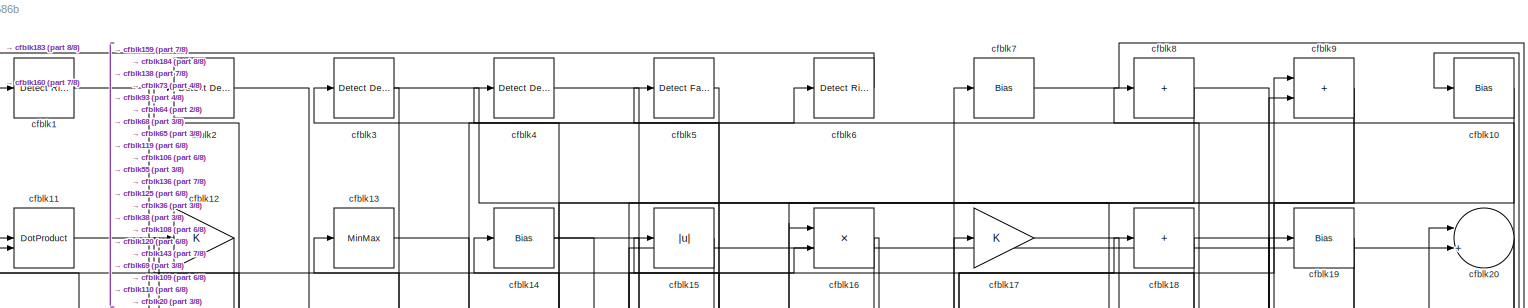
[diagram: root canvas - part 1/8, full width, top band]
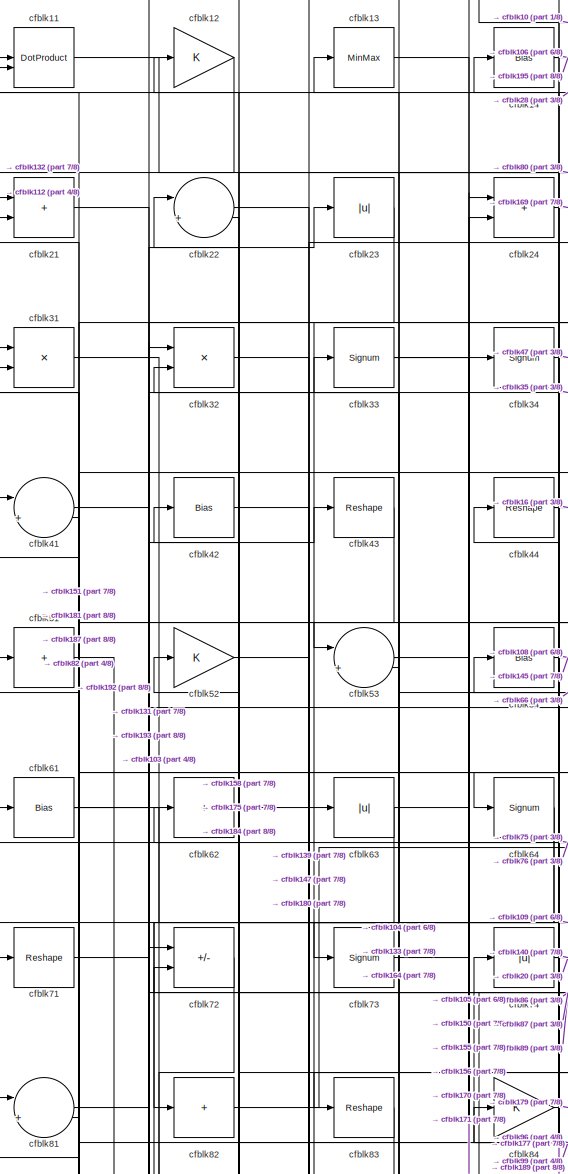
[diagram: root canvas - part 2/8, top left region]
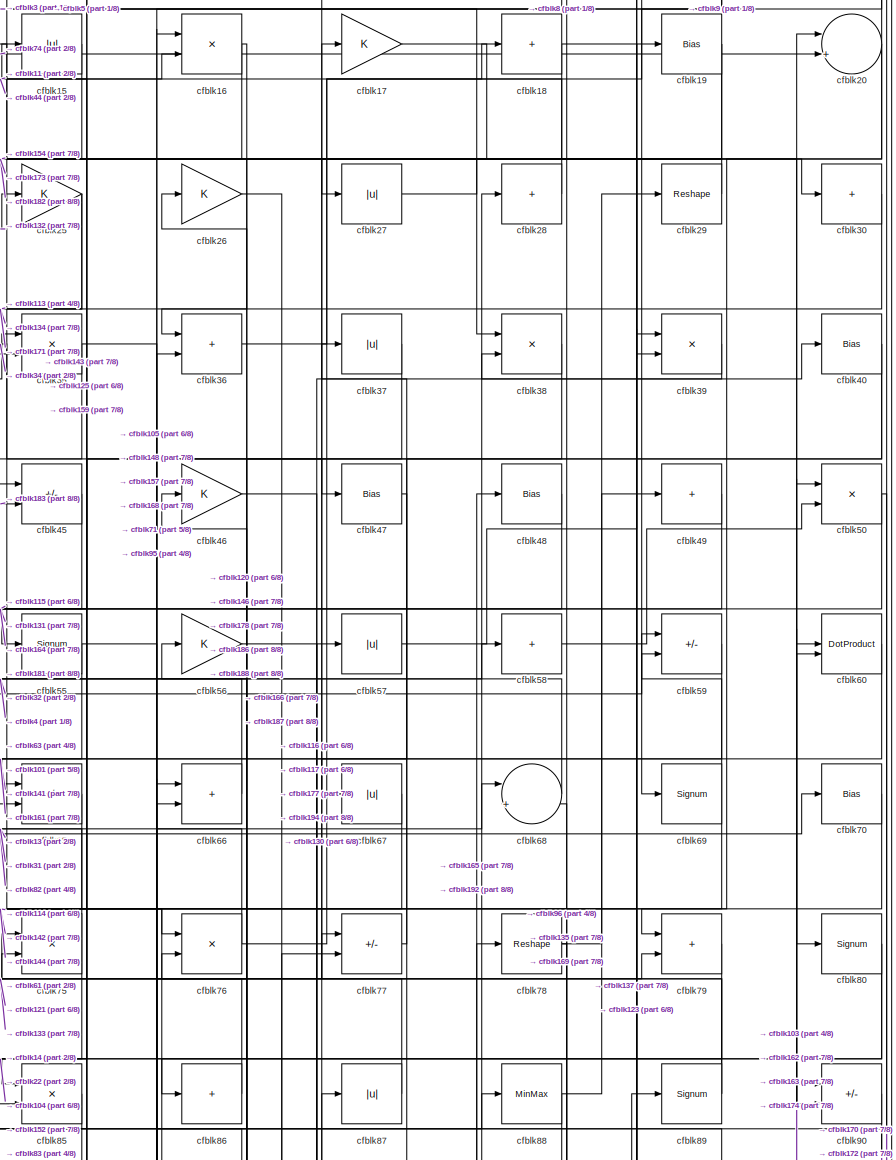
[diagram: root canvas - part 3/8, top right region]
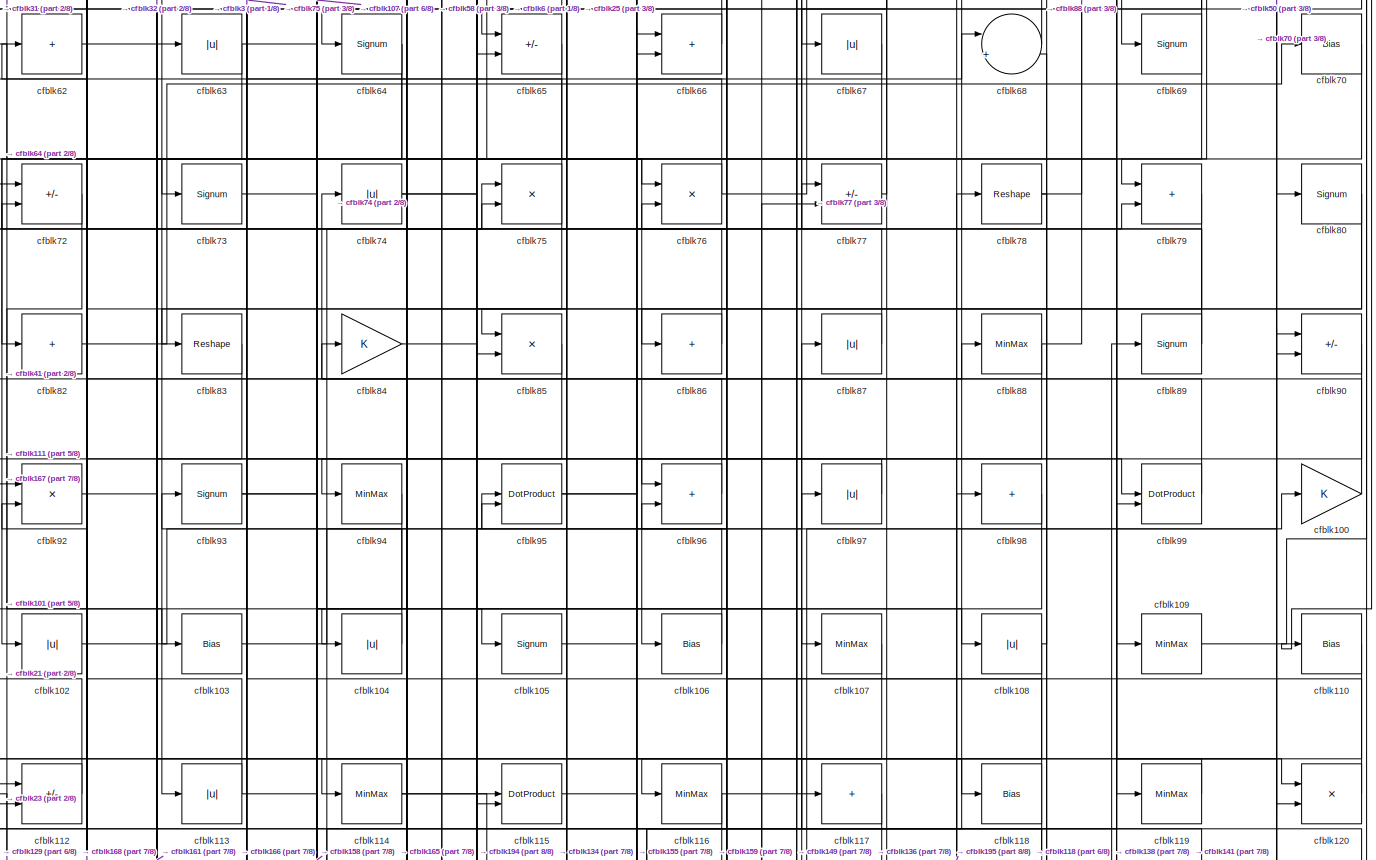
[diagram: root canvas - part 4/8, full width, middle band]
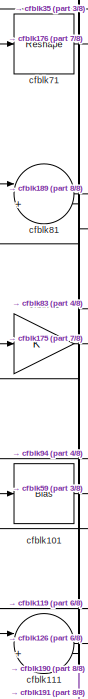
[diagram: root canvas - part 5/8, middle left region]
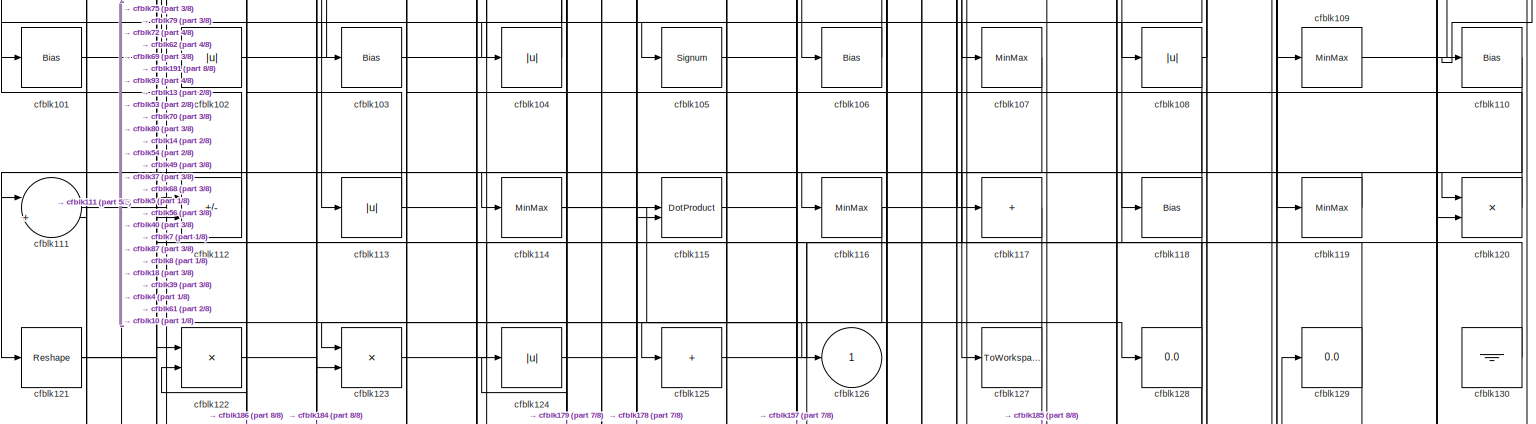
[diagram: root canvas - part 6/8, full width, middle band]
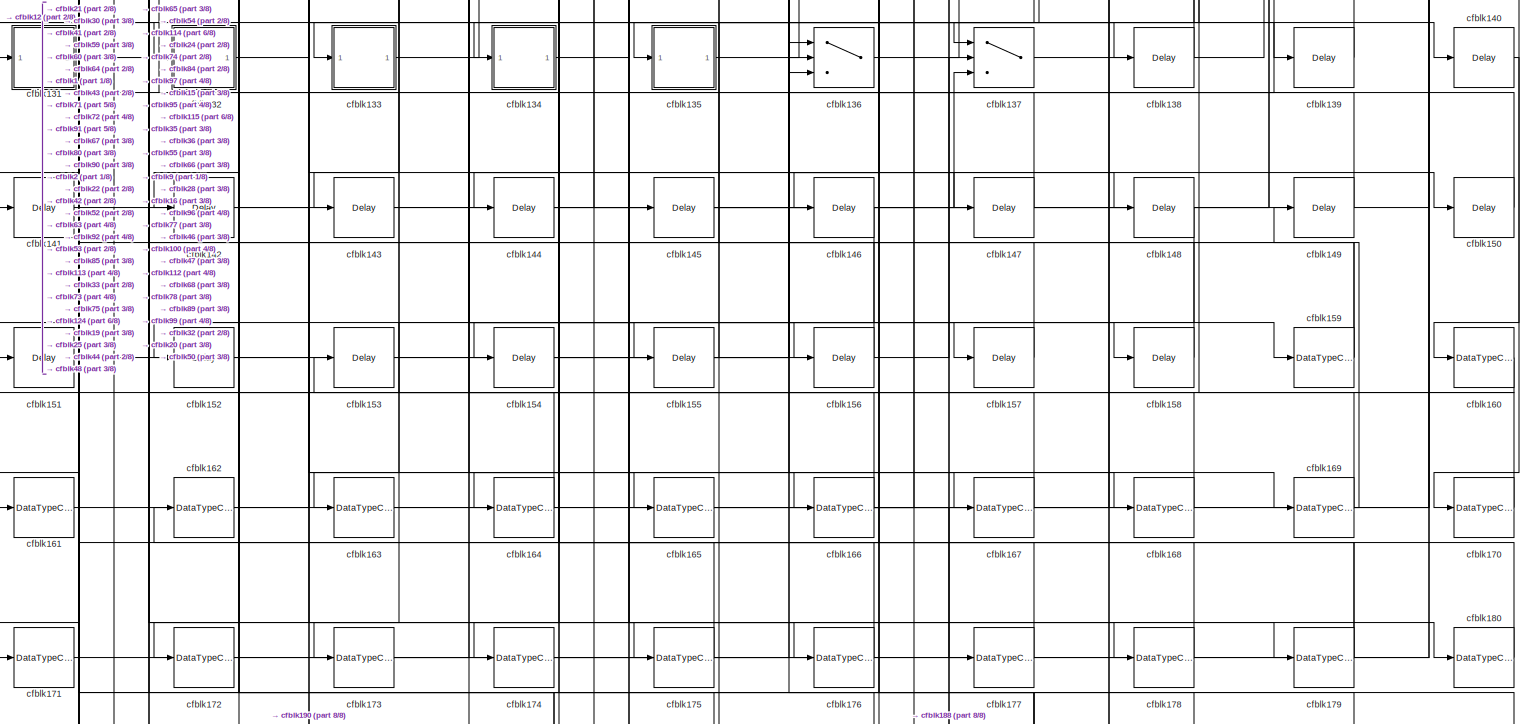
[diagram: root canvas - part 7/8, full width, bottom band]
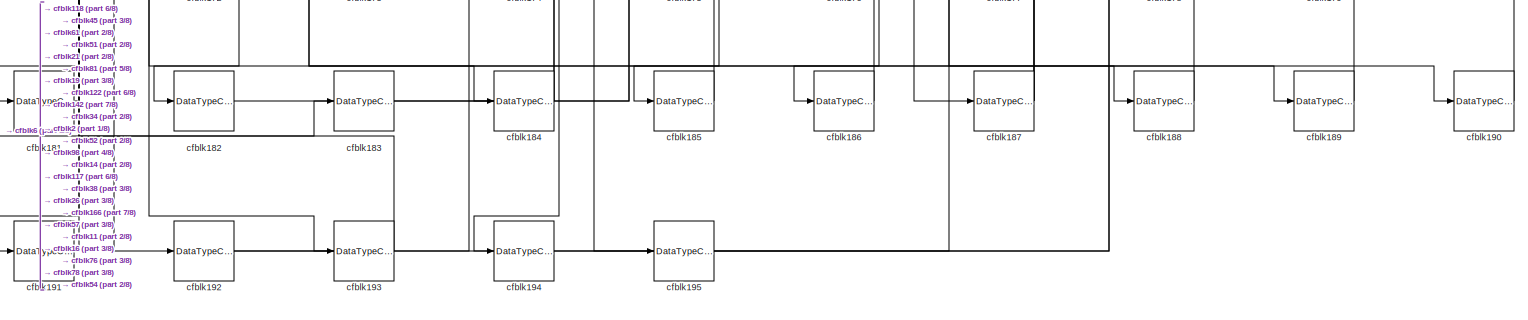
[diagram: root canvas - part 8/8, full width, bottom band]
MODEL slx_62b5419f686b
KIND model
CONFIG AbsTol = auto
CONFIG EnableMultiTasking = off
CONFIG FixedStep = auto
CONFIG MaxStep = auto
CONFIG MinStep = auto
CONFIG RelTol = 1e-3
CONFIG SampleTimeConstraint = Unconstrained
CONFIG SolverName = VariableStepAuto
CONFIG StartTime = 0.0
CONFIG StopTime = 10.0
BLOCK [Reference] cfblk1  REF=hdlsllib/Logic and Bit
Operations/Detect Rise
Positive
  SourceBlock = hdlsllib/Logic and Bit\nOperations/Detect Rise\nPositive
  SourceType = Detect Rise Positive
BLOCK [Bias] cfblk10
  Bias = 0.0
  SaturateOnIntegerOverflow = off
BLOCK [Gain] cfblk100
BLOCK [Bias] cfblk101
  Bias = 0.0
  SaturateOnIntegerOverflow = off
BLOCK [Abs] cfblk102
  SaturateOnIntegerOverflow = off
BLOCK [Bias] cfblk103
  Bias = 0.0
  SaturateOnIntegerOverflow = off
BLOCK [Abs] cfblk104
  SaturateOnIntegerOverflow = off
BLOCK [Signum] cfblk105
BLOCK [Bias] cfblk106
  Bias = 0.0
  SaturateOnIntegerOverflow = off
BLOCK [MinMax] cfblk107
BLOCK [Abs] cfblk108
  SaturateOnIntegerOverflow = off
BLOCK [MinMax] cfblk109
BLOCK [DotProduct] cfblk11
  OutDataTypeStr = Inherit: Inherit via internal rule
BLOCK [Bias] cfblk110
  Bias = 0.0
  SaturateOnIntegerOverflow = off
BLOCK [Sum] cfblk111
  Inputs = |++
BLOCK [Sum] cfblk112
  IconShape = rectangular
  Inputs = +-
BLOCK [Abs] cfblk113
  SaturateOnIntegerOverflow = off
BLOCK [MinMax] cfblk114
BLOCK [DotProduct] cfblk115
  OutDataTypeStr = Inherit: Inherit via internal rule
BLOCK [MinMax] cfblk116
BLOCK [Sum] cfblk117
  IconShape = rectangular
  Inputs = +
BLOCK [Bias] cfblk118
  Bias = 0.0
  SaturateOnIntegerOverflow = off
BLOCK [MinMax] cfblk119
BLOCK [Gain] cfblk12
BLOCK [Product] cfblk120
  Inputs = */
  RndMeth = Zero
  SaturateOnIntegerOverflow = on
BLOCK [Reshape] cfblk121
BLOCK [Product] cfblk122
  Inputs = */
  RndMeth = Zero
  SaturateOnIntegerOverflow = on
BLOCK [Product] cfblk123
  Inputs = */
  RndMeth = Zero
  SaturateOnIntegerOverflow = on
BLOCK [Abs] cfblk124
  SaturateOnIntegerOverflow = off
BLOCK [Sum] cfblk125
  IconShape = rectangular
  Inputs = +
BLOCK [Outport] cfblk126
  VectorParamsAs1DForOutWhenUnconnected = off
BLOCK [ToWorkspace] cfblk127
  MaxDataPoints = inf
  SampleTime = -1
  SaveFormat = Timeseries
  VariableName = simout
BLOCK [Display] cfblk128
  Decimation = 1
BLOCK [Display] cfblk129
  Decimation = 1
BLOCK [MinMax] cfblk13
BLOCK [Ground] cfblk130
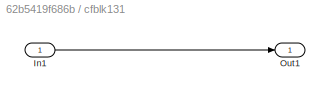
BLOCK [SubSystem] cfblk131
  LibrarySourceBlock = hdlsllib/Ports &\nSubsystems/Subsystem
BLOCK [Inport] cfblk131/In1
BLOCK [Outport] cfblk131/Out1
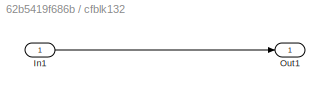
BLOCK [SubSystem] cfblk132
  LibrarySourceBlock = hdlsllib/Ports &\nSubsystems/Subsystem
BLOCK [Inport] cfblk132/In1
BLOCK [Outport] cfblk132/Out1
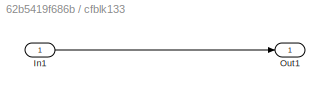
BLOCK [SubSystem] cfblk133
  LibrarySourceBlock = hdlsllib/Ports &\nSubsystems/Subsystem
BLOCK [Inport] cfblk133/In1
BLOCK [Outport] cfblk133/Out1
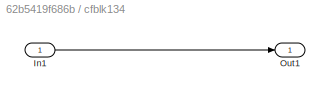
BLOCK [SubSystem] cfblk134
  LibrarySourceBlock = hdlsllib/Ports &\nSubsystems/Subsystem
BLOCK [Inport] cfblk134/In1
BLOCK [Outport] cfblk134/Out1
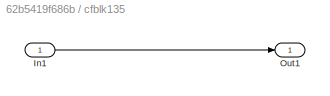
BLOCK [SubSystem] cfblk135
  LibrarySourceBlock = hdlsllib/Ports &\nSubsystems/Subsystem
BLOCK [Inport] cfblk135/In1
BLOCK [Outport] cfblk135/Out1
BLOCK [Switch] cfblk136
  InputSameDT = off
  SaturateOnIntegerOverflow = off
BLOCK [Switch] cfblk137
  InputSameDT = off
  SaturateOnIntegerOverflow = off
BLOCK [Delay] cfblk138
  InputPortMap = u0
  SampleTime = 1
BLOCK [Delay] cfblk139
  InputPortMap = u0
  SampleTime = 1
BLOCK [Bias] cfblk14
  Bias = 0.0
  SaturateOnIntegerOverflow = off
BLOCK [Delay] cfblk140
  InputPortMap = u0
  SampleTime = 1
BLOCK [Delay] cfblk141
  InputPortMap = u0
  SampleTime = 1
BLOCK [Delay] cfblk142
  InputPortMap = u0
  SampleTime = 1
BLOCK [Delay] cfblk143
  InputPortMap = u0
  SampleTime = 1
BLOCK [Delay] cfblk144
  InputPortMap = u0
  SampleTime = 1
BLOCK [Delay] cfblk145
  InputPortMap = u0
  SampleTime = 1
BLOCK [Delay] cfblk146
  InputPortMap = u0
  SampleTime = 1
BLOCK [Delay] cfblk147
  InputPortMap = u0
  SampleTime = 1
BLOCK [Delay] cfblk148
  InputPortMap = u0
  SampleTime = 1
BLOCK [Delay] cfblk149
  InputPortMap = u0
  SampleTime = 1
BLOCK [Abs] cfblk15
  SaturateOnIntegerOverflow = off
BLOCK [Delay] cfblk150
  InputPortMap = u0
  SampleTime = 1
BLOCK [Delay] cfblk151
  InputPortMap = u0
  SampleTime = 1
BLOCK [Delay] cfblk152
  InputPortMap = u0
  SampleTime = 1
BLOCK [Delay] cfblk153
  InputPortMap = u0
  SampleTime = 1
BLOCK [Delay] cfblk154
  InputPortMap = u0
  SampleTime = 1
BLOCK [Delay] cfblk155
  InputPortMap = u0
  SampleTime = 1
BLOCK [Delay] cfblk156
  InputPortMap = u0
  SampleTime = 1
BLOCK [Delay] cfblk157
  InputPortMap = u0
  SampleTime = 1
BLOCK [Delay] cfblk158
  InputPortMap = u0
  SampleTime = 1
BLOCK [DataTypeConversion] cfblk159
  RndMeth = Floor
  SaturateOnIntegerOverflow = off
BLOCK [Product] cfblk16
  Inputs = */
  RndMeth = Zero
  SaturateOnIntegerOverflow = on
BLOCK [DataTypeConversion] cfblk160
  OutDataTypeStr = uint8
  RndMeth = Floor
  SaturateOnIntegerOverflow = off
BLOCK [DataTypeConversion] cfblk161
  OutDataTypeStr = uint8
  RndMeth = Floor
  SaturateOnIntegerOverflow = off
BLOCK [DataTypeConversion] cfblk162
  OutDataTypeStr = uint8
  RndMeth = Floor
  SaturateOnIntegerOverflow = off
BLOCK [DataTypeConversion] cfblk163
  OutDataTypeStr = uint8
  RndMeth = Floor
  SaturateOnIntegerOverflow = off
BLOCK [DataTypeConversion] cfblk164
  OutDataTypeStr = uint8
  RndMeth = Floor
  SaturateOnIntegerOverflow = off
BLOCK [DataTypeConversion] cfblk165
  OutDataTypeStr = uint8
  RndMeth = Floor
  SaturateOnIntegerOverflow = off
BLOCK [DataTypeConversion] cfblk166
  RndMeth = Floor
  SaturateOnIntegerOverflow = off
BLOCK [DataTypeConversion] cfblk167
  OutDataTypeStr = uint8
  RndMeth = Floor
  SaturateOnIntegerOverflow = off
BLOCK [DataTypeConversion] cfblk168
  OutDataTypeStr = uint8
  RndMeth = Floor
  SaturateOnIntegerOverflow = off
BLOCK [DataTypeConversion] cfblk169
  RndMeth = Floor
  SaturateOnIntegerOverflow = off
BLOCK [Gain] cfblk17
BLOCK [DataTypeConversion] cfblk170
  OutDataTypeStr = uint8
  RndMeth = Floor
  SaturateOnIntegerOverflow = off
BLOCK [DataTypeConversion] cfblk171
  OutDataTypeStr = uint8
  RndMeth = Floor
  SaturateOnIntegerOverflow = off
BLOCK [DataTypeConversion] cfblk172
  OutDataTypeStr = uint8
  RndMeth = Floor
  SaturateOnIntegerOverflow = off
BLOCK [DataTypeConversion] cfblk173
  OutDataTypeStr = uint8
  RndMeth = Floor
  SaturateOnIntegerOverflow = off
BLOCK [DataTypeConversion] cfblk174
  OutDataTypeStr = uint8
  RndMeth = Floor
  SaturateOnIntegerOverflow = off
BLOCK [DataTypeConversion] cfblk175
  OutDataTypeStr = uint8
  RndMeth = Floor
  SaturateOnIntegerOverflow = off
BLOCK [DataTypeConversion] cfblk176
  OutDataTypeStr = uint8
  RndMeth = Floor
  SaturateOnIntegerOverflow = off
BLOCK [DataTypeConversion] cfblk177
  OutDataTypeStr = uint8
  RndMeth = Floor
  SaturateOnIntegerOverflow = off
BLOCK [DataTypeConversion] cfblk178
  OutDataTypeStr = uint8
  RndMeth = Floor
  SaturateOnIntegerOverflow = off
BLOCK [DataTypeConversion] cfblk179
  RndMeth = Floor
  SaturateOnIntegerOverflow = off
BLOCK [Sum] cfblk18
  IconShape = rectangular
  Inputs = +
BLOCK [DataTypeConversion] cfblk180
  OutDataTypeStr = uint8
  RndMeth = Floor
  SaturateOnIntegerOverflow = off
BLOCK [DataTypeConversion] cfblk181
  OutDataTypeStr = uint8
  RndMeth = Floor
  SaturateOnIntegerOverflow = off
BLOCK [DataTypeConversion] cfblk182
  OutDataTypeStr = uint8
  RndMeth = Floor
  SaturateOnIntegerOverflow = off
BLOCK [DataTypeConversion] cfblk183
  OutDataTypeStr = uint8
  RndMeth = Floor
  SaturateOnIntegerOverflow = off
BLOCK [DataTypeConversion] cfblk184
  RndMeth = Floor
  SaturateOnIntegerOverflow = off
BLOCK [DataTypeConversion] cfblk185
  OutDataTypeStr = uint8
  RndMeth = Floor
  SaturateOnIntegerOverflow = off
BLOCK [DataTypeConversion] cfblk186
  OutDataTypeStr = uint8
  RndMeth = Floor
  SaturateOnIntegerOverflow = off
BLOCK [DataTypeConversion] cfblk187
  RndMeth = Floor
  SaturateOnIntegerOverflow = off
BLOCK [DataTypeConversion] cfblk188
  OutDataTypeStr = uint8
  RndMeth = Floor
  SaturateOnIntegerOverflow = off
BLOCK [DataTypeConversion] cfblk189
  OutDataTypeStr = uint8
  RndMeth = Floor
  SaturateOnIntegerOverflow = off
BLOCK [Bias] cfblk19
  Bias = 0.0
  SaturateOnIntegerOverflow = off
BLOCK [DataTypeConversion] cfblk190
  OutDataTypeStr = uint8
  RndMeth = Floor
  SaturateOnIntegerOverflow = off
BLOCK [DataTypeConversion] cfblk191
  OutDataTypeStr = uint8
  RndMeth = Floor
  SaturateOnIntegerOverflow = off
BLOCK [DataTypeConversion] cfblk192
  RndMeth = Floor
  SaturateOnIntegerOverflow = off
BLOCK [DataTypeConversion] cfblk193
  OutDataTypeStr = uint8
  RndMeth = Floor
  SaturateOnIntegerOverflow = off
BLOCK [DataTypeConversion] cfblk194
  OutDataTypeStr = uint8
  RndMeth = Floor
  SaturateOnIntegerOverflow = off
BLOCK [DataTypeConversion] cfblk195
  OutDataTypeStr = uint8
  RndMeth = Floor
  SaturateOnIntegerOverflow = off
BLOCK [Reference] cfblk2  REF=simulink/Logic and Bit
Operations/Detect
Decrease
  LibrarySourceBlock = hdlsllib/Logic and Bit\nOperations/Detect\nDecrease
  SourceBlock = simulink/Logic and Bit\nOperations/Detect\nDecrease
  SourceType = Detect Decrease
BLOCK [Sum] cfblk20
  Inputs = |++
BLOCK [Sum] cfblk21
  IconShape = rectangular
BLOCK [Sum] cfblk22
  Inputs = |++
BLOCK [Abs] cfblk23
  SaturateOnIntegerOverflow = off
BLOCK [Sum] cfblk24
  IconShape = rectangular
BLOCK [Gain] cfblk25
BLOCK [Gain] cfblk26
BLOCK [Abs] cfblk27
  SaturateOnIntegerOverflow = off
BLOCK [Sum] cfblk28
  IconShape = rectangular
  Inputs = +
BLOCK [Reshape] cfblk29
BLOCK [Reference] cfblk3  REF=simulink/Logic and Bit
Operations/Detect
Decrease
  LibrarySourceBlock = hdlsllib/Logic and Bit\nOperations/Detect\nDecrease
  SourceBlock = simulink/Logic and Bit\nOperations/Detect\nDecrease
  SourceType = Detect Decrease
BLOCK [Sum] cfblk30
  IconShape = rectangular
  Inputs = +
BLOCK [Product] cfblk31
  Inputs = */
  RndMeth = Zero
  SaturateOnIntegerOverflow = on
BLOCK [Product] cfblk32
  Inputs = */
  RndMeth = Zero
  SaturateOnIntegerOverflow = on
BLOCK [Signum] cfblk33
BLOCK [Signum] cfblk34
BLOCK [Product] cfblk35
  Inputs = */
  RndMeth = Zero
  SaturateOnIntegerOverflow = on
BLOCK [Sum] cfblk36
  IconShape = rectangular
BLOCK [Abs] cfblk37
  SaturateOnIntegerOverflow = off
BLOCK [Product] cfblk38
  Inputs = */
  RndMeth = Zero
  SaturateOnIntegerOverflow = on
BLOCK [Product] cfblk39
  Inputs = */
  RndMeth = Zero
  SaturateOnIntegerOverflow = on
BLOCK [Reference] cfblk4  REF=simulink/Logic and Bit
Operations/Detect
Decrease
  LibrarySourceBlock = hdlsllib/Logic and Bit\nOperations/Detect\nDecrease
  SourceBlock = simulink/Logic and Bit\nOperations/Detect\nDecrease
  SourceType = Detect Decrease
BLOCK [Bias] cfblk40
  Bias = 0.0
  SaturateOnIntegerOverflow = off
BLOCK [Sum] cfblk41
  Inputs = |++
BLOCK [Bias] cfblk42
  Bias = 0.0
  SaturateOnIntegerOverflow = off
BLOCK [Reshape] cfblk43
BLOCK [Reshape] cfblk44
BLOCK [Sum] cfblk45
  IconShape = rectangular
  Inputs = +-
BLOCK [Gain] cfblk46
BLOCK [Bias] cfblk47
  Bias = 0.0
  SaturateOnIntegerOverflow = off
BLOCK [Bias] cfblk48
  Bias = 0.0
  SaturateOnIntegerOverflow = off
BLOCK [Sum] cfblk49
  IconShape = rectangular
  Inputs = +
BLOCK [Reference] cfblk5  REF=hdlsllib/Logic and Bit
Operations/Detect Fall
Nonpositive
  SourceBlock = hdlsllib/Logic and Bit\nOperations/Detect Fall\nNonpositive
  SourceType = Detect Fall Nonpositive
BLOCK [Product] cfblk50
  Inputs = */
  RndMeth = Zero
  SaturateOnIntegerOverflow = on
BLOCK [Sum] cfblk51
  IconShape = rectangular
  Inputs = +
BLOCK [Gain] cfblk52
BLOCK [Sum] cfblk53
  Inputs = |++
BLOCK [Bias] cfblk54
  Bias = 0.0
  SaturateOnIntegerOverflow = off
BLOCK [Signum] cfblk55
BLOCK [Gain] cfblk56
BLOCK [Abs] cfblk57
  SaturateOnIntegerOverflow = off
BLOCK [Sum] cfblk58
  IconShape = rectangular
  Inputs = +
BLOCK [Sum] cfblk59
  IconShape = rectangular
  Inputs = +-
BLOCK [Reference] cfblk6  REF=hdlsllib/Logic and Bit
Operations/Detect Rise
Positive
  SourceBlock = hdlsllib/Logic and Bit\nOperations/Detect Rise\nPositive
  SourceType = Detect Rise Positive
BLOCK [DotProduct] cfblk60
  OutDataTypeStr = Inherit: Inherit via internal rule
BLOCK [Bias] cfblk61
  Bias = 0.0
  SaturateOnIntegerOverflow = off
BLOCK [Sum] cfblk62
  IconShape = rectangular
  Inputs = +
BLOCK [Abs] cfblk63
  SaturateOnIntegerOverflow = off
BLOCK [Signum] cfblk64
BLOCK [Sum] cfblk65
  IconShape = rectangular
  Inputs = +-
BLOCK [Sum] cfblk66
  IconShape = rectangular
BLOCK [Abs] cfblk67
  SaturateOnIntegerOverflow = off
BLOCK [Sum] cfblk68
  Inputs = |++
BLOCK [Signum] cfblk69
BLOCK [Bias] cfblk7
  Bias = 0.0
  SaturateOnIntegerOverflow = off
BLOCK [Bias] cfblk70
  Bias = 0.0
  SaturateOnIntegerOverflow = off
BLOCK [Reshape] cfblk71
BLOCK [Sum] cfblk72
  IconShape = rectangular
  Inputs = +-
BLOCK [Signum] cfblk73
BLOCK [Abs] cfblk74
  SaturateOnIntegerOverflow = off
BLOCK [Product] cfblk75
  Inputs = */
  RndMeth = Zero
  SaturateOnIntegerOverflow = on
BLOCK [Product] cfblk76
  Inputs = */
  RndMeth = Zero
  SaturateOnIntegerOverflow = on
BLOCK [Sum] cfblk77
  IconShape = rectangular
  Inputs = +-
BLOCK [Reshape] cfblk78
BLOCK [Sum] cfblk79
  IconShape = rectangular
BLOCK [Sum] cfblk8
  IconShape = rectangular
  Inputs = +
BLOCK [Signum] cfblk80
BLOCK [Sum] cfblk81
  Inputs = |++
BLOCK [Sum] cfblk82
  IconShape = rectangular
  Inputs = +
BLOCK [Reshape] cfblk83
BLOCK [Gain] cfblk84
BLOCK [Product] cfblk85
  Inputs = */
  RndMeth = Zero
  SaturateOnIntegerOverflow = on
BLOCK [Sum] cfblk86
  IconShape = rectangular
  Inputs = +
BLOCK [Abs] cfblk87
  SaturateOnIntegerOverflow = off
BLOCK [MinMax] cfblk88
BLOCK [Signum] cfblk89
BLOCK [Sum] cfblk9
  IconShape = rectangular
BLOCK [Sum] cfblk90
  IconShape = rectangular
  Inputs = +-
BLOCK [Gain] cfblk91
BLOCK [Product] cfblk92
  Inputs = */
  RndMeth = Zero
  SaturateOnIntegerOverflow = on
BLOCK [Signum] cfblk93
BLOCK [MinMax] cfblk94
BLOCK [DotProduct] cfblk95
  OutDataTypeStr = Inherit: Inherit via internal rule
BLOCK [Sum] cfblk96
  IconShape = rectangular
BLOCK [Abs] cfblk97
  SaturateOnIntegerOverflow = off
BLOCK [Sum] cfblk98
  IconShape = rectangular
  Inputs = +
BLOCK [DotProduct] cfblk99
  OutDataTypeStr = Inherit: Inherit via internal rule
LINE cfblk100:1 -> cfblk62:1
LINE cfblk101:1 -> cfblk59:1
LINE cfblk102:1 -> cfblk95:1
LINE cfblk103:1 -> cfblk50:1
LINE cfblk104:1 -> cfblk53:2
LINE cfblk105:1 -> cfblk68:1
LINE cfblk106:1 -> cfblk5:1
LINE cfblk107:1 -> cfblk121:1
NET cfblk108:1 -> cfblk116:1, cfblk8:1
LINE cfblk109:1 -> cfblk10:1
LINE cfblk10:1 -> cfblk64:1
LINE cfblk110:1 -> cfblk127:1
LINE cfblk111:1 -> cfblk126:1
LINE cfblk112:1 -> cfblk21:1
NET cfblk113:1 -> cfblk158:1, cfblk72:2
NET cfblk114:1 -> cfblk128:1, cfblk178:1
LINE cfblk115:1 -> cfblk157:1
NET cfblk116:1 -> cfblk123:1, cfblk40:1
LINE cfblk117:1 -> cfblk185:1
NET cfblk118:1 -> cfblk191:1, cfblk93:1
LINE cfblk119:1 -> cfblk111:1
LINE cfblk11:1 -> cfblk80:1
LINE cfblk120:1 -> cfblk56:1
NET cfblk121:1 -> cfblk75:2, cfblk79:2
LINE cfblk122:1 -> cfblk184:1
LINE cfblk123:1 -> cfblk39:1
LINE cfblk124:1 -> cfblk115:1
LINE cfblk125:1 -> cfblk7:1
LINE cfblk12:1 -> cfblk132:1
LINE cfblk130:1 -> cfblk87:1
LINE cfblk131/In1:1 -> cfblk131/Out1:1
LINE cfblk131:1 -> cfblk43:1
LINE cfblk132/In1:1 -> cfblk132/Out1:1
LINE cfblk132:1 -> cfblk25:1
LINE cfblk133/In1:1 -> cfblk133/Out1:1
LINE cfblk133:1 -> cfblk75:1
LINE cfblk134/In1:1 -> cfblk134/Out1:1
LINE cfblk134:1 -> cfblk97:1
LINE cfblk135/In1:1 -> cfblk135/Out1:1
LINE cfblk135:1 -> cfblk28:1
LINE cfblk136:1 -> cfblk100:1
LINE cfblk137:1 -> cfblk89:1
LINE cfblk138:1 -> cfblk112:1
LINE cfblk139:1 -> cfblk32:1
LINE cfblk13:1 -> cfblk105:1
LINE cfblk140:1 -> cfblk160:1
LINE cfblk141:1 -> cfblk99:2
LINE cfblk142:1 -> cfblk190:1
LINE cfblk143:1 -> cfblk9:2
LINE cfblk144:1 -> cfblk20:1
LINE cfblk145:1 -> cfblk137:3
LINE cfblk146:1 -> cfblk174:1
LINE cfblk147:1 -> cfblk41:1
LINE cfblk148:1 -> cfblk163:1
LINE cfblk149:1 -> cfblk96:2
NET cfblk14:1 -> cfblk106:1, cfblk195:1
LINE cfblk150:1 -> cfblk136:2
LINE cfblk151:1 -> cfblk137:2
LINE cfblk152:1 -> cfblk167:1
LINE cfblk153:1 -> cfblk136:1
LINE cfblk154:1 -> cfblk36:2
LINE cfblk155:1 -> cfblk95:2
LINE cfblk156:1 -> cfblk21:2
LINE cfblk157:1 -> cfblk66:1
LINE cfblk158:1 -> cfblk12:1
NET cfblk159:1 -> cfblk15:1, cfblk72:1
LINE cfblk15:1 -> cfblk173:1
LINE cfblk160:1 -> cfblk1:1
LINE cfblk161:1 -> cfblk63:1
LINE cfblk162:1 -> cfblk60:1
LINE cfblk163:1 -> cfblk60:2
LINE cfblk164:1 -> cfblk33:1
LINE cfblk165:1 -> cfblk48:1
NET cfblk166:1 -> cfblk153:1, cfblk188:1, cfblk77:2
LINE cfblk167:1 -> cfblk92:1
LINE cfblk168:1 -> cfblk92:2
NET cfblk169:1 -> cfblk149:1, cfblk68:2
NET cfblk16:1 -> cfblk146:1, cfblk35:2
LINE cfblk170:1 -> cfblk24:1
LINE cfblk171:1 -> cfblk24:2
LINE cfblk172:1 -> cfblk66:2
LINE cfblk173:1 -> cfblk90:1
LINE cfblk174:1 -> cfblk90:2
LINE cfblk175:1 -> cfblk42:1
LINE cfblk176:1 -> cfblk91:1
LINE cfblk177:1 -> cfblk44:1
LINE cfblk178:1 -> cfblk46:1
NET cfblk179:1 -> cfblk124:1, cfblk162:1
LINE cfblk17:1 -> cfblk39:2
LINE cfblk180:1 -> cfblk84:1
LINE cfblk181:1 -> cfblk61:1
LINE cfblk182:1 -> cfblk45:1
LINE cfblk183:1 -> cfblk45:2
NET cfblk184:1 -> cfblk2:1, cfblk52:1
LINE cfblk185:1 -> cfblk122:1
LINE cfblk186:1 -> cfblk122:2
NET cfblk187:1 -> cfblk11:2, cfblk16:1, cfblk76:2
LINE cfblk188:1 -> cfblk26:1
LINE cfblk189:1 -> cfblk54:1
NET cfblk18:1 -> cfblk120:2, cfblk85:2
LINE cfblk190:1 -> cfblk81:1
LINE cfblk191:1 -> cfblk81:2
NET cfblk192:1 -> cfblk34:1, cfblk78:1
LINE cfblk193:1 -> cfblk51:1
LINE cfblk194:1 -> cfblk57:1
LINE cfblk195:1 -> cfblk98:1
NET cfblk19:1 -> cfblk154:1, cfblk182:1
LINE cfblk1:1 -> cfblk159:1
NET cfblk20:1 -> cfblk36:1, cfblk3:1, cfblk79:1
LINE cfblk21:1 -> cfblk193:1
LINE cfblk22:1 -> cfblk180:1
LINE cfblk23:1 -> cfblk112:2
LINE cfblk24:1 -> cfblk169:1
NET cfblk25:1 -> cfblk113:1, cfblk134:1
LINE cfblk26:1 -> cfblk187:1
LINE cfblk27:1 -> cfblk30:1
LINE cfblk28:1 -> cfblk11:1
LINE cfblk29:1 -> cfblk27:1
LINE cfblk2:1 -> cfblk138:1
LINE cfblk30:1 -> cfblk171:1
LINE cfblk31:1 -> cfblk103:1
LINE cfblk32:1 -> cfblk99:1
NET cfblk33:1 -> cfblk155:1, cfblk156:1
LINE cfblk34:1 -> cfblk47:1
NET cfblk35:1 -> cfblk148:1, cfblk71:1
LINE cfblk36:1 -> cfblk9:1
LINE cfblk37:1 -> cfblk125:1
LINE cfblk38:1 -> cfblk186:1
LINE cfblk39:1 -> cfblk38:2
NET cfblk3:1 -> cfblk38:1, cfblk73:1
NET cfblk40:1 -> cfblk67:1, cfblk85:1
LINE cfblk41:1 -> cfblk23:1
LINE cfblk42:1 -> cfblk147:1
LINE cfblk43:1 -> cfblk53:1
NET cfblk44:1 -> cfblk16:2, cfblk76:1
LINE cfblk45:1 -> cfblk181:1
LINE cfblk46:1 -> cfblk177:1
LINE cfblk47:1 -> cfblk137:1
LINE cfblk48:1 -> cfblk164:1
LINE cfblk49:1 -> cfblk115:2
LINE cfblk4:1 -> cfblk119:1
NET cfblk50:1 -> cfblk131:1, cfblk170:1
LINE cfblk51:1 -> cfblk192:1
LINE cfblk52:1 -> cfblk139:1
NET cfblk53:1 -> cfblk133:1, cfblk150:1
NET cfblk54:1 -> cfblk108:1, cfblk145:1
NET cfblk55:1 -> cfblk168:1, cfblk65:1
LINE cfblk56:1 -> cfblk117:1
LINE cfblk57:1 -> cfblk19:1
LINE cfblk58:1 -> cfblk50:2
LINE cfblk59:1 -> cfblk141:1
LINE cfblk5:1 -> cfblk55:1
LINE cfblk60:1 -> cfblk161:1
NET cfblk61:1 -> cfblk109:1, cfblk31:2, cfblk35:1
LINE cfblk62:1 -> cfblk118:1
NET cfblk63:1 -> cfblk102:1, cfblk58:1
NET cfblk64:1 -> cfblk151:1, cfblk82:1
LINE cfblk65:1 -> cfblk144:1
LINE cfblk66:1 -> cfblk32:2
LINE cfblk67:1 -> cfblk142:1
LINE cfblk68:1 -> cfblk4:1
NET cfblk69:1 -> cfblk123:2, cfblk59:2
LINE cfblk6:1 -> cfblk183:1
LINE cfblk70:1 -> cfblk114:1
LINE cfblk71:1 -> cfblk176:1
LINE cfblk72:1 -> cfblk129:1
LINE cfblk73:1 -> cfblk165:1
NET cfblk74:1 -> cfblk140:1, cfblk20:2
NET cfblk75:1 -> cfblk13:1, cfblk83:1
NET cfblk76:1 -> cfblk18:1, cfblk31:1
LINE cfblk77:1 -> cfblk37:1
NET cfblk78:1 -> cfblk135:1, cfblk29:1
LINE cfblk79:1 -> cfblk86:1
LINE cfblk7:1 -> cfblk110:1
NET cfblk80:1 -> cfblk104:1, cfblk152:1
LINE cfblk81:1 -> cfblk189:1
LINE cfblk82:1 -> cfblk70:1
LINE cfblk83:1 -> cfblk111:2
LINE cfblk84:1 -> cfblk179:1
LINE cfblk85:1 -> cfblk143:1
LINE cfblk86:1 -> cfblk14:1
LINE cfblk87:1 -> cfblk22:1
NET cfblk88:1 -> cfblk49:1, cfblk96:1
NET cfblk89:1 -> cfblk17:1, cfblk22:2
NET cfblk8:1 -> cfblk120:1, cfblk65:2
LINE cfblk90:1 -> cfblk172:1
LINE cfblk91:1 -> cfblk175:1
LINE cfblk92:1 -> cfblk166:1
NET cfblk93:1 -> cfblk107:1, cfblk6:1
LINE cfblk94:1 -> cfblk101:1
NET cfblk95:1 -> cfblk77:1, cfblk88:1
LINE cfblk96:1 -> cfblk74:1
LINE cfblk97:1 -> cfblk94:1
LINE cfblk98:1 -> cfblk194:1
LINE cfblk99:1 -> cfblk41:2
NET cfblk9:1 -> cfblk136:3, cfblk69:1
note: NET lines group one-source signal fan-out (src -> all destinations, sorted); 1:1 wires keep LINE
